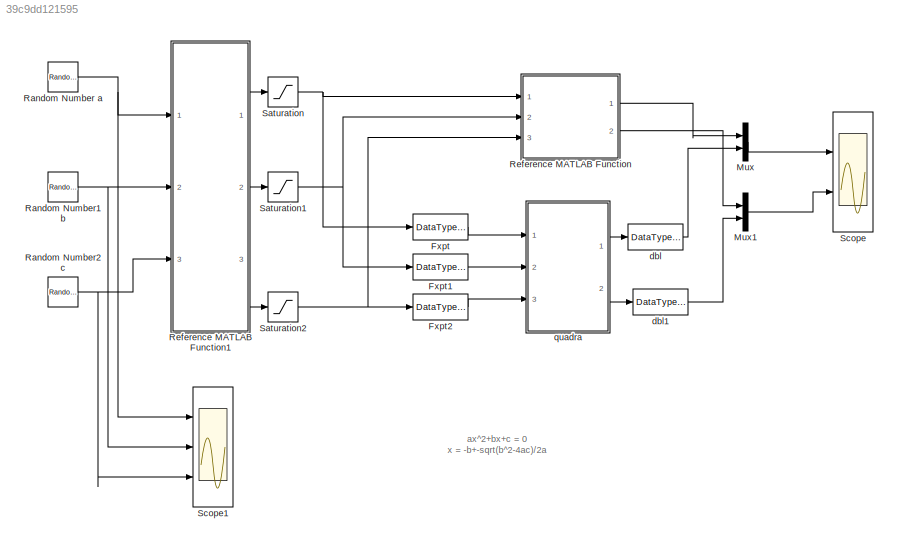
MODEL slx_39c9dd121595
KIND model
CONFIG AbsTol = auto
CONFIG FixedStep = auto
CONFIG MaxStep = auto
CONFIG MinStep = auto
CONFIG RelTol = 1e-3
CONFIG SampleTimeConstraint = Unconstrained
CONFIG Solver = FixedStepDiscrete
CONFIG SolverMode = SingleTasking
CONFIG SolverName = FixedStepDiscrete
CONFIG StartTime = 0.0
CONFIG StopTime = 10.0
BLOCK [DataTypeConversion] Fxpt
  OutDataTypeStr = fixdt(1,20,8)
  RndMeth = Floor
  SaturateOnIntegerOverflow = off
BLOCK [DataTypeConversion] Fxpt1
  OutDataTypeStr = fixdt(1,20,8)
  RndMeth = Floor
  SaturateOnIntegerOverflow = off
BLOCK [DataTypeConversion] Fxpt2
  OutDataTypeStr = fixdt(1,20,8)
  RndMeth = Floor
  SaturateOnIntegerOverflow = off
BLOCK [Mux] Mux
  DisplayOption = bar
  Inputs = 2
  Ports = [2, 1]
BLOCK [Mux] Mux1
  DisplayOption = bar
  Inputs = 2
  Ports = [2, 1]
BLOCK [RandomNumber] Random Number a
  SampleTime = 1
  Seed = 1
  Variance = 8
BLOCK [RandomNumber] Random Number1 b
  SampleTime = 1
  Seed = 2
  Variance = 8
BLOCK [RandomNumber] Random Number2 c
  SampleTime = 1
  Seed = 3
  Variance = 8
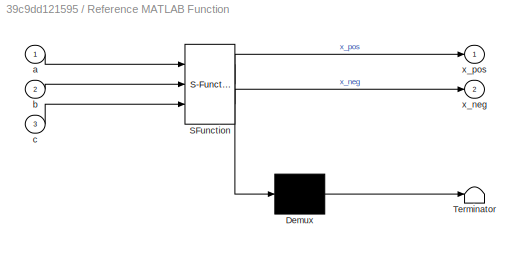
BLOCK [SubSystem] Reference MATLAB Function
  ErrorFcn = Stateflow.Translate.translate
  PermitHierarchicalResolution = ExplicitOnly
  Ports = [3, 2]
  RequestExecContextInheritance = off
  SFBlockType = MATLAB Function
  TreatAsAtomicUnit = on
  Variant = off
BLOCK [Demux] Reference MATLAB Function/ Demux 
  Outputs = 1
  Ports = [1, 1]
BLOCK [S-Function] Reference MATLAB Function/ SFunction 
  EnableBusSupport = on
  FunctionName = sf_sfun
  PortCounts = [3 3]
  Ports = [3, 3]
  SFunctionDeploymentMode = off
  Tag = Stateflow S-Function sla_quadratic_formula 2
BLOCK [Terminator] Reference MATLAB Function/ Terminator 
BLOCK [Inport] Reference MATLAB Function/a
  IconDisplay = Port number
BLOCK [Inport] Reference MATLAB Function/b
  IconDisplay = Port number
  Port = 2
BLOCK [Inport] Reference MATLAB Function/c
  IconDisplay = Port number
  Port = 3
BLOCK [Outport] Reference MATLAB Function/x_neg
  IconDisplay = Port number
  Port = 2
BLOCK [Outport] Reference MATLAB Function/x_pos
  IconDisplay = Port number
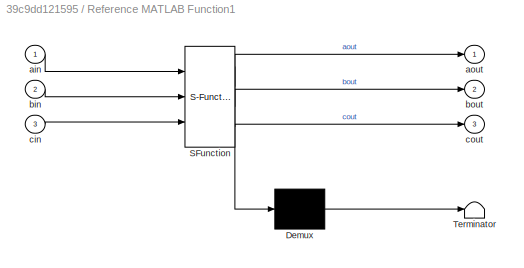
BLOCK [SubSystem] Reference MATLAB Function1
  ErrorFcn = Stateflow.Translate.translate
  PermitHierarchicalResolution = ExplicitOnly
  Ports = [3, 3]
  RequestExecContextInheritance = off
  SFBlockType = MATLAB Function
  TreatAsAtomicUnit = on
  Variant = off
BLOCK [Demux] Reference MATLAB Function1/ Demux 
  Outputs = 1
  Ports = [1, 1]
BLOCK [S-Function] Reference MATLAB Function1/ SFunction 
  EnableBusSupport = on
  FunctionName = sf_sfun
  PortCounts = [3 4]
  Ports = [3, 4]
  SFunctionDeploymentMode = off
  Tag = Stateflow S-Function sla_quadratic_formula 1
BLOCK [Terminator] Reference MATLAB Function1/ Terminator 
BLOCK [Inport] Reference MATLAB Function1/ain
  IconDisplay = Port number
BLOCK [Outport] Reference MATLAB Function1/aout
  IconDisplay = Port number
BLOCK [Inport] Reference MATLAB Function1/bin
  IconDisplay = Port number
  Port = 2
BLOCK [Outport] Reference MATLAB Function1/bout
  IconDisplay = Port number
  Port = 2
BLOCK [Inport] Reference MATLAB Function1/cin
  IconDisplay = Port number
  Port = 3
BLOCK [Outport] Reference MATLAB Function1/cout
  IconDisplay = Port number
  Port = 3
BLOCK [Saturate] Saturation
  InputPortMap = u0
  LowerLimit = -8
  Ports = [1, 1]
  UpperLimit = 7.99
BLOCK [Saturate] Saturation1
  InputPortMap = u0
  LowerLimit = -8
  Ports = [1, 1]
  UpperLimit = 7.99
BLOCK [Saturate] Saturation2
  InputPortMap = u0
  LowerLimit = -8
  Ports = [1, 1]
  UpperLimit = 7.99
BLOCK [Scope] Scope
  NumInputPorts = 2
  Ports = [2]
  ScopeSpecificationString = C++SS(StrPVP('Location','[1113, 67, 1679, 807]'),StrPVP('Open','off'),MxPVP('AxesTitles',24,'struct(''axes1'',''%<SignalLabel>'',''axes2'',''%<SignalLabel>'')'),MxPVP('ScopeGraphics',28,'struct(''FigureColor'',''[0.5 0.5 0.5]'',''AxesColor'',''[0 0 0]'',''AxesTickColor'',''[1 1 1]'',''LineColors'',''[1 1 0;1 0 1;0 1 1;1 0 0;0 1 0;0 0 1]'',''LineStyles'',''-|-|-|-|-|-'',''LineWidths'',''[0.5 0.5 0....<+315ch>
BLOCK [Scope] Scope1
  NumInputPorts = 3
  Ports = [3]
  ScopeSpecificationString = C++SS(StrPVP('Location','[1053, 67, 1675, 807]'),StrPVP('Open','off'),MxPVP('AxesTitles',24,'struct(''axes1'',''%<SignalLabel>'',''axes2'',''%<SignalLabel>'',''axes3'',''%<SignalLabel>'')'),MxPVP('ScopeGraphics',28,'struct(''FigureColor'',''[0.5 0.5 0.5]'',''AxesColor'',''[0 0 0]'',''AxesTickColor'',''[1 1 1]'',''LineColors'',''[1 1 0;1 0 1;0 1 1;1 0 0;0 1 0;0 0 1]'',''LineStyles'',''-|-|-|-|-|-''...<+351ch>
BLOCK [DataTypeConversion] dbl
  OutDataTypeStr = double
  RndMeth = Floor
  SaturateOnIntegerOverflow = off
BLOCK [DataTypeConversion] dbl1
  OutDataTypeStr = double
  RndMeth = Floor
  SaturateOnIntegerOverflow = off
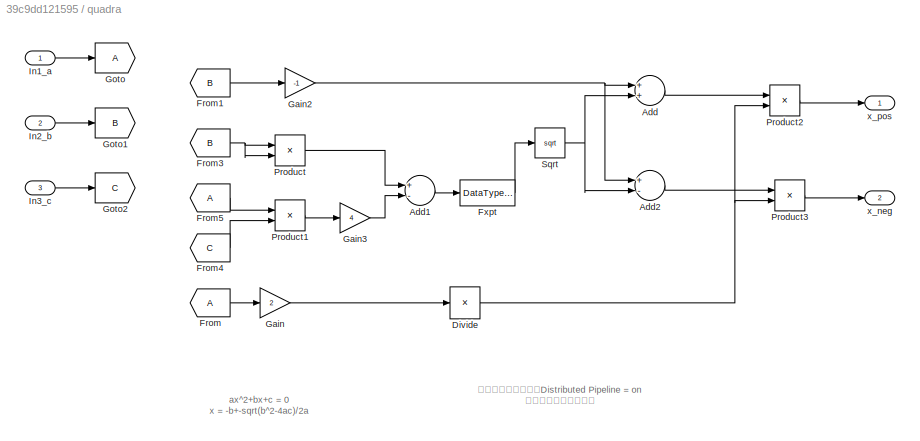
BLOCK [SubSystem] quadra
  Ports = [3, 2]
  RequestExecContextInheritance = off
  Variant = off
BLOCK [Sum] quadra/Add
  InputSameDT = off
  OutDataTypeStr = Inherit: Inherit via internal rule
  Ports = [2, 1]
  SaturateOnIntegerOverflow = off
BLOCK [Sum] quadra/Add1
  InputSameDT = off
  Inputs = +-
  OutDataTypeStr = Inherit: Inherit via internal rule
  Ports = [2, 1]
  SaturateOnIntegerOverflow = off
BLOCK [Sum] quadra/Add2
  InputSameDT = off
  Inputs = +-
  OutDataTypeStr = Inherit: Inherit via internal rule
  Ports = [2, 1]
  SaturateOnIntegerOverflow = off
BLOCK [Product] quadra/Divide
  InputSameDT = off
  Inputs = /
  OutDataTypeStr = Inherit: Inherit via internal rule
  Ports = [1, 1]
BLOCK [From] quadra/From
BLOCK [From] quadra/From1
  GotoTag = B
BLOCK [From] quadra/From3
  GotoTag = B
BLOCK [From] quadra/From4
  GotoTag = C
BLOCK [From] quadra/From5
BLOCK [DataTypeConversion] quadra/Fxpt
  OutDataTypeStr = fixdt(0,64,28)
  RndMeth = Floor
BLOCK [Gain] quadra/Gain
  Gain = 2
  ParamDataTypeStr = Inherit: Inherit via internal rule
  SaturateOnIntegerOverflow = off
BLOCK [Gain] quadra/Gain2
  Gain = -1
  ParamDataTypeStr = Inherit: Inherit via internal rule
  SaturateOnIntegerOverflow = off
BLOCK [Gain] quadra/Gain3
  Gain = 4
  ParamDataTypeStr = Inherit: Inherit via internal rule
  SaturateOnIntegerOverflow = off
BLOCK [Goto] quadra/Goto
BLOCK [Goto] quadra/Goto1
  GotoTag = B
BLOCK [Goto] quadra/Goto2
  GotoTag = C
BLOCK [Inport] quadra/In1_a
  IconDisplay = Port number
BLOCK [Inport] quadra/In2_b
  IconDisplay = Port number
  Port = 2
BLOCK [Inport] quadra/In3_c
  IconDisplay = Port number
  Port = 3
BLOCK [Product] quadra/Product
  InputSameDT = off
  OutDataTypeStr = Inherit: Inherit via internal rule
  Ports = [2, 1]
  RndMeth = Floor
  SaturateOnIntegerOverflow = off
BLOCK [Product] quadra/Product1
  InputSameDT = off
  OutDataTypeStr = Inherit: Inherit via internal rule
  Ports = [2, 1]
  RndMeth = Floor
  SaturateOnIntegerOverflow = off
BLOCK [Product] quadra/Product2
  InputSameDT = off
  OutDataTypeStr = Inherit: Inherit via internal rule
  Ports = [2, 1]
  SaturateOnIntegerOverflow = off
BLOCK [Product] quadra/Product3
  InputSameDT = off
  OutDataTypeStr = Inherit: Inherit via internal rule
  Ports = [2, 1]
  SaturateOnIntegerOverflow = off
BLOCK [Sqrt] quadra/Sqrt
BLOCK [Outport] quadra/x_neg
  IconDisplay = Port number
  Port = 2
BLOCK [Outport] quadra/x_pos
  IconDisplay = Port number
ANNOTATION (root): ax^2+bx+c = 0 x = -b+-sqrt(b^2-4ac)/2a
ANNOTATION quadra: ax^2+bx+c = 0 x = -b+-sqrt(b^2-4ac)/2a
ANNOTATION quadra: 上位サブシステムでDistributed Pipeline = on に設定されています。
LINE Fxpt1:1 -> quadra:2
LINE Fxpt2:1 -> quadra:3
LINE Fxpt:1 -> quadra:1
LINE Mux1:1 -> Scope:2
LINE Mux:1 -> Scope:1
NET Random Number a:1 -> Reference MATLAB Function1:1, Scope1:1
NET Random Number1 b:1 -> Reference MATLAB Function1:2, Scope1:2
NET Random Number2 c:1 -> Reference MATLAB Function1:3, Scope1:3
LINE Reference MATLAB Function1:1 -> Saturation:1
LINE Reference MATLAB Function1:2 -> Saturation1:1
LINE Reference MATLAB Function1:3 -> Saturation2:1
LINE Reference MATLAB Function:1 -> Mux:1
LINE Reference MATLAB Function:2 -> Mux1:1
NET Saturation1:1 -> Fxpt1:1, Reference MATLAB Function:2
NET Saturation2:1 -> Fxpt2:1, Reference MATLAB Function:3
NET Saturation:1 -> Fxpt:1, Reference MATLAB Function:1
LINE dbl1:1 -> Mux1:2
LINE dbl:1 -> Mux:2
LINE quadra/Add1:1 -> quadra/Fxpt:1
LINE quadra/Add2:1 -> quadra/Product3:1
LINE quadra/Add:1 -> quadra/Product2:1
NET quadra/Divide:1 -> quadra/Product2:2, quadra/Product3:2
LINE quadra/From1:1 -> quadra/Gain2:1
NET quadra/From3:1 -> quadra/Product:1, quadra/Product:2
LINE quadra/From4:1 -> quadra/Product1:2
LINE quadra/From5:1 -> quadra/Product1:1
LINE quadra/From:1 -> quadra/Gain:1
LINE quadra/Fxpt:1 -> quadra/Sqrt:1
NET quadra/Gain2:1 -> quadra/Add2:1, quadra/Add:1
LINE quadra/Gain3:1 -> quadra/Add1:2
LINE quadra/Gain:1 -> quadra/Divide:1
LINE quadra/In1_a:1 -> quadra/Goto:1
LINE quadra/In2_b:1 -> quadra/Goto1:1
LINE quadra/In3_c:1 -> quadra/Goto2:1
LINE quadra/Product1:1 -> quadra/Gain3:1
LINE quadra/Product2:1 -> quadra/x_pos:1
LINE quadra/Product3:1 -> quadra/x_neg:1
LINE quadra/Product:1 -> quadra/Add1:1
NET quadra/Sqrt:1 -> quadra/Add2:2, quadra/Add:2
LINE quadra:1 -> dbl:1
LINE quadra:2 -> dbl1:1
note: NET lines group one-source signal fan-out (src -> all destinations, sorted); 1:1 wires keep LINE
CHART Reference MATLAB Function1 states=1 transitions=1
  STATE_LABEL 'eML_blk_kernel()'
  STATE_LABEL 'SCRIPT:\nfunction [aout,bout,cout] = fcn(ain,bin,cin)\n%#eml\n\n% sqrtが複素数にならないよう入力値の制限\n\nif (bin^2-4*ain*cin)>=0\n\taout = ain;\n\tbout = bin;\n\tcout = cin;\nelse\n\taout = -ain;\n\tbout = bin;\n\tcout = cin;\nend\t\n'
CHART Reference MATLAB Function states=1 transitions=1
  STATE_LABEL 'eML_blk_kernel()'
  STATE_LABEL 'SCRIPT:\nfunction [x_pos,x_neg] = fcn(a,b,c)\n%#eml\n\nx_pos = (-b+sqrt(b^2-4*a*c))/(2*a);\nx_neg = (-b-sqrt(b^2-4*a*c))/(2*a);\n\n'
